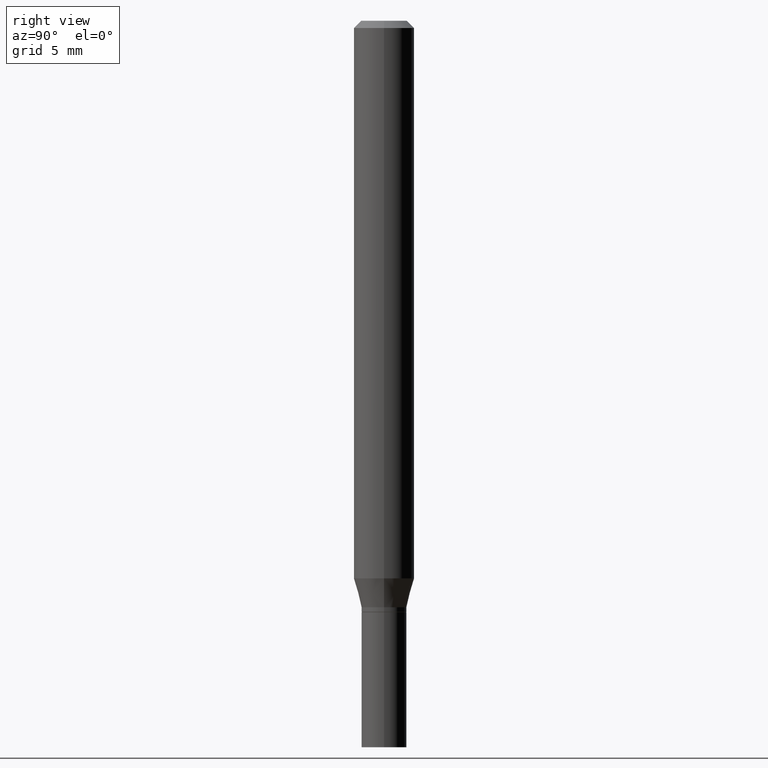
[diagram: clean part render]
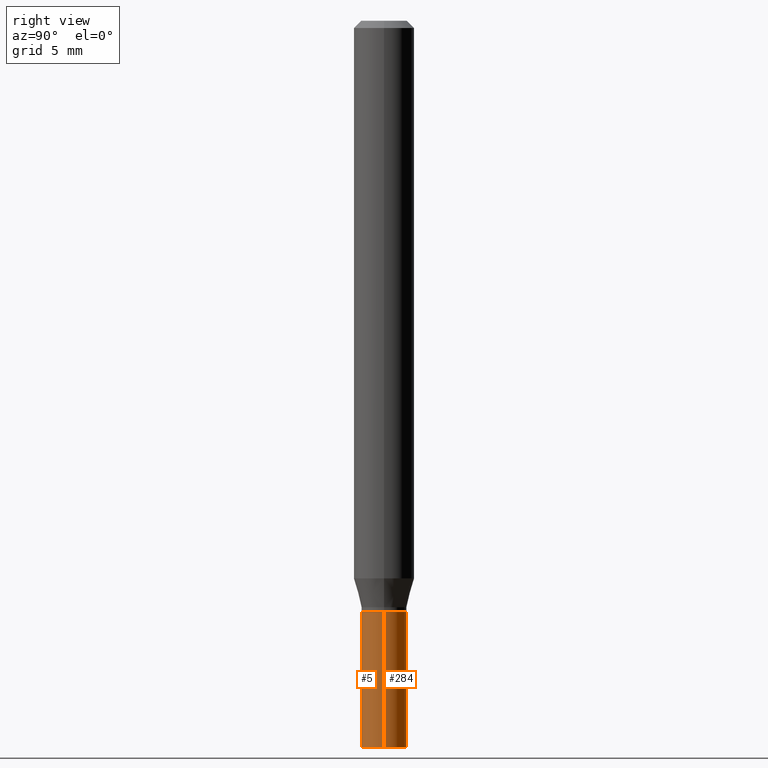
[diagram: same view with one multi-face feature highlighted, each face labeled with its STEP entity id]
A machine part, right view. The highlighted faces form ONE feature: a constant-radius fillet chain: 2 tangent blend faces with common blend radius 1.1811 mm. The faces share edges in the B-rep.
Their STEP definitions:
[1] entity #5 (Cylinder):
#2 = CARTESIAN_POINT ( 'NONE',  ( -0.04649999999999999967, -4.419757989367653263E-15, -1.500000000000000222 ) ) ;
#3 = ORIENTED_EDGE ( 'NONE', *, *, #359, .F. ) ;
#5 = ADVANCED_FACE ( 'NONE', ( #158 ), #366, .T. ) ;
#14 = CARTESIAN_POINT ( 'NONE',  ( 2.985917412352052273E-29, -4.263098714727481320E-15, -1.221000000000000085 ) ) ;
#18 = EDGE_CURVE ( 'NONE', #288, #465, #244, .T. ) ;
#21 = DIRECTION ( 'NONE',  ( -2.445468806185136877E-29, 3.491481338843145188E-15, 1.000000000000000000 ) ) ;
#22 = CARTESIAN_POINT ( 'NONE',  ( 3.668203209277704895E-29, -5.237222008264718177E-15, -1.500000000000000222 ) ) ;
#54 = CARTESIAN_POINT ( 'NONE',  ( 0.04649999999999999967, -3.247077645124114474E-16, 2.267422200745110326E-30 ) ) ;
#60 = DIRECTION ( 'NONE',  ( -2.445468806185136597E-29, 3.491481338843145583E-15, 1.000000000000000000 ) ) ;
#74 = CARTESIAN_POINT ( 'NONE',  ( -0.04649999999999999967, 3.304023721284465841E-16, -2.287304816968531530E-30 ) ) ;
#91 = DIRECTION ( 'NONE',  ( 1.000000000000000000, -6.982962677686260400E-15, 0.000000000000000000 ) ) ;
#104 = ORIENTED_EDGE ( 'NONE', *, *, #18, .T. ) ;
#111 = ORIENTED_EDGE ( 'NONE', *, *, #312, .T. ) ;
#124 = DIRECTION ( 'NONE',  ( 1.000000000000000000, -6.982962677686267499E-15, 4.876176775795936353E-29 ) ) ;
#132 = EDGE_CURVE ( 'NONE', #178, #465, #141, .T. ) ;
#141 = CIRCLE ( 'NONE', #446, 0.04649999999999999967 ) ;
#146 = CARTESIAN_POINT ( 'NONE',  ( 0.04649999999999999967, -4.587806479239892817E-15, -1.221000000000000085 ) ) ;
#158 = FACE_OUTER_BOUND ( 'NONE', #358, .T. ) ;
#177 = DIRECTION ( 'NONE',  ( -2.445468806185136597E-29, 3.491481338843145583E-15, 1.000000000000000000 ) ) ;
#178 = VERTEX_POINT ( 'NONE', #200 ) ;
#200 = CARTESIAN_POINT ( 'NONE',  ( -0.04649999999999999967, -4.419757989367653263E-15, -1.221000000000000085 ) ) ;
#203 = VECTOR ( 'NONE', #21, 39.37007874015748143 ) ;
#210 = AXIS2_PLACEMENT_3D ( 'NONE', #22, #177, #458 ) ;
#211 = CARTESIAN_POINT ( 'NONE',  ( 0.04649999999999999967, -5.561929772777129673E-15, -1.500000000000000222 ) ) ;
#244 = LINE ( 'NONE', #54, #203 ) ;
#288 = VERTEX_POINT ( 'NONE', #211 ) ;
#297 = DIRECTION ( 'NONE',  ( -2.445468806185136877E-29, 3.491481338843145188E-15, 1.000000000000000000 ) ) ;
#312 = EDGE_CURVE ( 'NONE', #339, #288, #388, .T. ) ;
#317 = DIRECTION ( 'NONE',  ( -2.445468806185136597E-29, 3.491481338843145583E-15, 1.000000000000000000 ) ) ;
#335 = AXIS2_PLACEMENT_3D ( 'NONE', #382, #60, #124 ) ;
#339 = VERTEX_POINT ( 'NONE', #2 ) ;
#358 = EDGE_LOOP ( 'NONE', ( #3, #111, #104, #433 ) ) ;
#359 = EDGE_CURVE ( 'NONE', #339, #178, #391, .T. ) ;
#366 = CYLINDRICAL_SURFACE ( 'NONE', #335, 0.04649999999999999967 ) ;
#367 = VECTOR ( 'NONE', #297, 39.37007874015748143 ) ;
#382 = CARTESIAN_POINT ( 'NONE',  ( 0.000000000000000000, 0.000000000000000000, 0.000000000000000000 ) ) ;
#388 = CIRCLE ( 'NONE', #210, 0.04649999999999999967 ) ;
#391 = LINE ( 'NONE', #74, #367 ) ;
#433 = ORIENTED_EDGE ( 'NONE', *, *, #132, .F. ) ;
#446 = AXIS2_PLACEMENT_3D ( 'NONE', #14, #317, #91 ) ;
#458 = DIRECTION ( 'NONE',  ( 1.000000000000000000, -6.982962677686260400E-15, 0.000000000000000000 ) ) ;
#465 = VERTEX_POINT ( 'NONE', #146 ) ;
[2] entity #284 (Cylinder):
#2 = CARTESIAN_POINT ( 'NONE',  ( -0.04649999999999999967, -4.419757989367653263E-15, -1.500000000000000222 ) ) ;
#15 = DIRECTION ( 'NONE',  ( 1.000000000000000000, -6.982962677686260400E-15, 0.000000000000000000 ) ) ;
#18 = EDGE_CURVE ( 'NONE', #288, #465, #244, .T. ) ;
#21 = DIRECTION ( 'NONE',  ( -2.445468806185136877E-29, 3.491481338843145188E-15, 1.000000000000000000 ) ) ;
#48 = ORIENTED_EDGE ( 'NONE', *, *, #221, .T. ) ;
#49 = AXIS2_PLACEMENT_3D ( 'NONE', #253, #180, #66 ) ;
#54 = CARTESIAN_POINT ( 'NONE',  ( 0.04649999999999999967, -3.247077645124114474E-16, 2.267422200745110326E-30 ) ) ;
#66 = DIRECTION ( 'NONE',  ( 1.000000000000000000, -6.982962677686267499E-15, 4.876176775795936353E-29 ) ) ;
#74 = CARTESIAN_POINT ( 'NONE',  ( -0.04649999999999999967, 3.304023721284465841E-16, -2.287304816968531530E-30 ) ) ;
#86 = EDGE_CURVE ( 'NONE', #465, #178, #250, .T. ) ;
#100 = FACE_OUTER_BOUND ( 'NONE', #217, .T. ) ;
#102 = CARTESIAN_POINT ( 'NONE',  ( 3.668203209277704895E-29, -5.237222008264718177E-15, -1.500000000000000222 ) ) ;
#146 = CARTESIAN_POINT ( 'NONE',  ( 0.04649999999999999967, -4.587806479239892817E-15, -1.221000000000000085 ) ) ;
#178 = VERTEX_POINT ( 'NONE', #200 ) ;
#180 = DIRECTION ( 'NONE',  ( -2.445468806185136597E-29, 3.491481338843145583E-15, 1.000000000000000000 ) ) ;
#200 = CARTESIAN_POINT ( 'NONE',  ( -0.04649999999999999967, -4.419757989367653263E-15, -1.221000000000000085 ) ) ;
#203 = VECTOR ( 'NONE', #21, 39.37007874015748143 ) ;
#211 = CARTESIAN_POINT ( 'NONE',  ( 0.04649999999999999967, -5.561929772777129673E-15, -1.500000000000000222 ) ) ;
#217 = EDGE_LOOP ( 'NONE', ( #48, #329, #331, #401 ) ) ;
#221 = EDGE_CURVE ( 'NONE', #288, #339, #454, .T. ) ;
#244 = LINE ( 'NONE', #54, #203 ) ;
#250 = CIRCLE ( 'NONE', #422, 0.04649999999999999967 ) ;
#253 = CARTESIAN_POINT ( 'NONE',  ( 0.000000000000000000, 0.000000000000000000, 0.000000000000000000 ) ) ;
#284 = ADVANCED_FACE ( 'NONE', ( #100 ), #361, .T. ) ;
#288 = VERTEX_POINT ( 'NONE', #211 ) ;
#289 = DIRECTION ( 'NONE',  ( 1.000000000000000000, -6.982962677686260400E-15, 0.000000000000000000 ) ) ;
#292 = AXIS2_PLACEMENT_3D ( 'NONE', #102, #360, #289 ) ;
#297 = DIRECTION ( 'NONE',  ( -2.445468806185136877E-29, 3.491481338843145188E-15, 1.000000000000000000 ) ) ;
#329 = ORIENTED_EDGE ( 'NONE', *, *, #359, .T. ) ;
#331 = ORIENTED_EDGE ( 'NONE', *, *, #86, .F. ) ;
#339 = VERTEX_POINT ( 'NONE', #2 ) ;
#359 = EDGE_CURVE ( 'NONE', #339, #178, #391, .T. ) ;
#360 = DIRECTION ( 'NONE',  ( -2.445468806185136597E-29, 3.491481338843145583E-15, 1.000000000000000000 ) ) ;
#361 = CYLINDRICAL_SURFACE ( 'NONE', #49, 0.04649999999999999967 ) ;
#367 = VECTOR ( 'NONE', #297, 39.37007874015748143 ) ;
#391 = LINE ( 'NONE', #74, #367 ) ;
#401 = ORIENTED_EDGE ( 'NONE', *, *, #18, .F. ) ;
#422 = AXIS2_PLACEMENT_3D ( 'NONE', #449, #441, #15 ) ;
#441 = DIRECTION ( 'NONE',  ( -2.445468806185136597E-29, 3.491481338843145583E-15, 1.000000000000000000 ) ) ;
#449 = CARTESIAN_POINT ( 'NONE',  ( 2.985917412352052273E-29, -4.263098714727481320E-15, -1.221000000000000085 ) ) ;
#454 = CIRCLE ( 'NONE', #292, 0.04649999999999999967 ) ;
#465 = VERTEX_POINT ( 'NONE', #146 ) ;